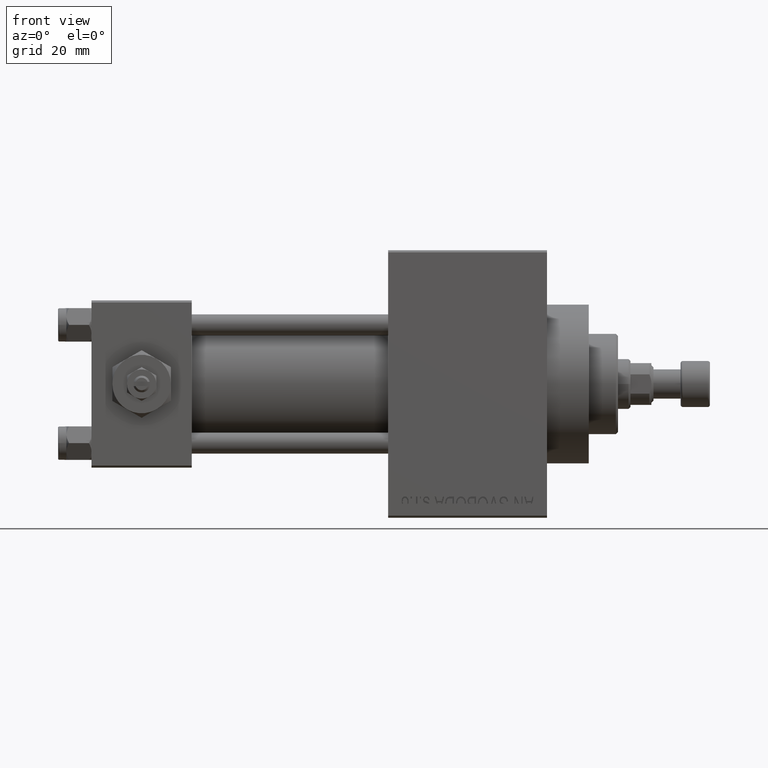
[diagram: clean part render]
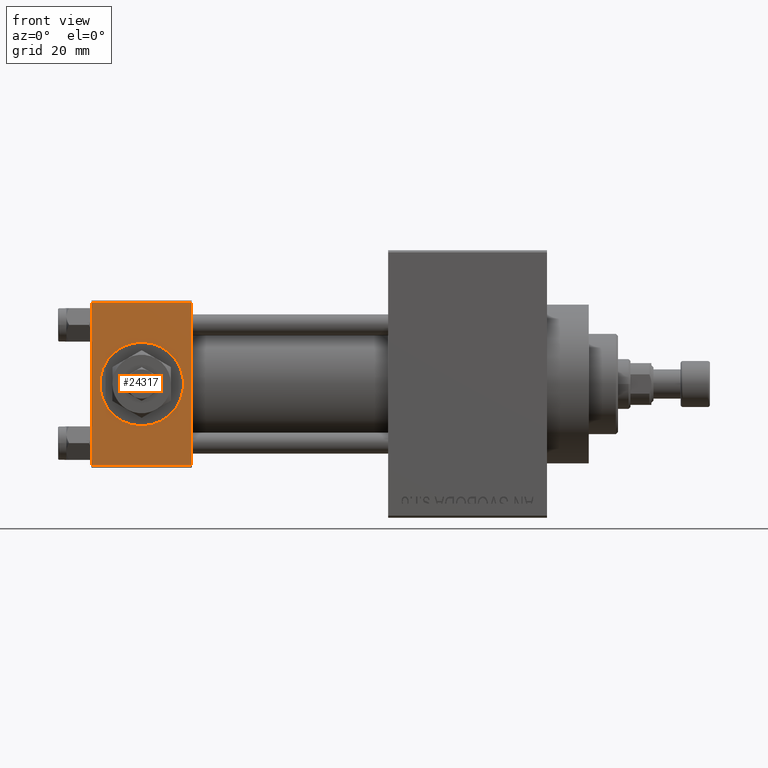
[diagram: same view with one face highlighted and labeled with its STEP entity id]
A machine part, front view. The second image highlights one B-rep face of the part: STEP entity #24317.
In plain terms, the highlighted planar face has unit normal (0, 1, 0).
Its self-contained STEP definition (entity closure, byte-faithful):
#119 = VERTEX_POINT ( 'NONE', #48372 ) ;
#276 = LINE ( 'NONE', #27024, #25086 ) ;
#725 = VERTEX_POINT ( 'NONE', #43256 ) ;
#740 = ORIENTED_EDGE ( 'NONE', *, *, #18782, .F. ) ;
#947 = ORIENTED_EDGE ( 'NONE', *, *, #17548, .F. ) ;
#3297 = DIRECTION ( 'NONE',  ( 0.000000000000000000, -1.000000000000000000, -8.673617379884036705E-17 ) ) ;
#4661 = EDGE_CURVE ( 'NONE', #119, #725, #4951, .T. ) ;
#4951 = LINE ( 'NONE', #34485, #11198 ) ;
#4972 = DIRECTION ( 'NONE',  ( 0.000000000000000000, 0.000000000000000000, -1.000000000000000000 ) ) ;
#5291 = VECTOR ( 'NONE', #7297, 1000.000000000000000 ) ;
#6007 = AXIS2_PLACEMENT_3D ( 'NONE', #20700, #24696, #4972 ) ;
#6189 = ORIENTED_EDGE ( 'NONE', *, *, #8532, .T. ) ;
#7297 = DIRECTION ( 'NONE',  ( 1.000000000000000000, 0.000000000000000000, 0.000000000000000000 ) ) ;
#7428 = ORIENTED_EDGE ( 'NONE', *, *, #4661, .F. ) ;
#8532 = EDGE_CURVE ( 'NONE', #14291, #23647, #9351, .T. ) ;
#8669 = ORIENTED_EDGE ( 'NONE', *, *, #28601, .T. ) ;
#9351 = LINE ( 'NONE', #28574, #22535 ) ;
#11198 = VECTOR ( 'NONE', #20193, 1000.000000000000000 ) ;
#14291 = VERTEX_POINT ( 'NONE', #37678 ) ;
#14557 = CARTESIAN_POINT ( 'NONE',  ( 12.00000000000000000, -20.00000000000000355, -1.734723475976807883E-15 ) ) ;
#14805 = CARTESIAN_POINT ( 'NONE',  ( 24.00000000000000000, -20.00000000000000000, -19.49999999999999645 ) ) ;
#15461 = DIRECTION ( 'NONE',  ( 0.000000000000000000, -8.673617379884036705E-17, 1.000000000000000000 ) ) ;
#17548 = EDGE_CURVE ( 'NONE', #36936, #37522, #24298, .T. ) ;
#18037 = EDGE_LOOP ( 'NONE', ( #740, #947 ) ) ;
#18782 = EDGE_CURVE ( 'NONE', #37522, #36936, #32305, .T. ) ;
#19936 = PLANE ( 'NONE',  #21202 ) ;
#20193 = DIRECTION ( 'NONE',  ( 0.000000000000000000, 8.673617379884036705E-17, -1.000000000000000000 ) ) ;
#20700 = CARTESIAN_POINT ( 'NONE',  ( 12.00000000000000000, -20.00000000000000355, -1.734723475976807883E-15 ) ) ;
#21202 = AXIS2_PLACEMENT_3D ( 'NONE', #41930, #42418, #15461 ) ;
#21806 = DIRECTION ( 'NONE',  ( 0.000000000000000000, 0.000000000000000000, -1.000000000000000000 ) ) ;
#22323 = EDGE_CURVE ( 'NONE', #23647, #725, #49045, .T. ) ;
#22535 = VECTOR ( 'NONE', #47574, 1000.000000000000000 ) ;
#22828 = CARTESIAN_POINT ( 'NONE',  ( 0.000000000000000000, -20.00000000000000000, -19.49999999999999645 ) ) ;
#23647 = VERTEX_POINT ( 'NONE', #22828 ) ;
#23686 = FACE_BOUND ( 'NONE', #18037, .T. ) ;
#24298 = CIRCLE ( 'NONE', #31459, 9.999999999999996447 ) ;
#24317 = ADVANCED_FACE ( 'NONE', ( #23686, #38909 ), #19936, .F. ) ;
#24696 = DIRECTION ( 'NONE',  ( 0.000000000000000000, -1.000000000000000000, -8.673617379884036705E-17 ) ) ;
#25008 = CARTESIAN_POINT ( 'NONE',  ( 12.00000000000000178, -20.00000000000000355, 9.999999999999994671 ) ) ;
#25086 = VECTOR ( 'NONE', #42248, 1000.000000000000000 ) ;
#27024 = CARTESIAN_POINT ( 'NONE',  ( 24.00000000000000000, -20.00000000000000355, 19.49999999999998224 ) ) ;
#28574 = CARTESIAN_POINT ( 'NONE',  ( 0.000000000000000000, -20.00000000000000355, 19.99999999999998934 ) ) ;
#28601 = EDGE_CURVE ( 'NONE', #119, #14291, #276, .T. ) ;
#30755 = CARTESIAN_POINT ( 'NONE',  ( 12.00000000000000000, -20.00000000000000355, -9.999999999999998224 ) ) ;
#31459 = AXIS2_PLACEMENT_3D ( 'NONE', #14557, #3297, #21806 ) ;
#32305 = CIRCLE ( 'NONE', #6007, 9.999999999999996447 ) ;
#34485 = CARTESIAN_POINT ( 'NONE',  ( 24.00000000000000000, -20.00000000000000355, 19.99999999999998934 ) ) ;
#36936 = VERTEX_POINT ( 'NONE', #25008 ) ;
#37522 = VERTEX_POINT ( 'NONE', #30755 ) ;
#37678 = CARTESIAN_POINT ( 'NONE',  ( 0.000000000000000000, -20.00000000000000355, 19.49999999999998224 ) ) ;
#38909 = FACE_OUTER_BOUND ( 'NONE', #40481, .T. ) ;
#40481 = EDGE_LOOP ( 'NONE', ( #6189, #48362, #7428, #8669 ) ) ;
#41930 = CARTESIAN_POINT ( 'NONE',  ( 24.00000000000000000, -20.00000000000000355, 19.99999999999998934 ) ) ;
#42248 = DIRECTION ( 'NONE',  ( -1.000000000000000000, 0.000000000000000000, 0.000000000000000000 ) ) ;
#42418 = DIRECTION ( 'NONE',  ( -0.000000000000000000, 1.000000000000000000, 8.673617379884036705E-17 ) ) ;
#43256 = CARTESIAN_POINT ( 'NONE',  ( 24.00000000000000000, -20.00000000000000000, -19.49999999999999645 ) ) ;
#47574 = DIRECTION ( 'NONE',  ( 0.000000000000000000, 8.673617379884036705E-17, -1.000000000000000000 ) ) ;
#48362 = ORIENTED_EDGE ( 'NONE', *, *, #22323, .T. ) ;
#48372 = CARTESIAN_POINT ( 'NONE',  ( 24.00000000000000000, -20.00000000000000355, 19.49999999999998224 ) ) ;
#49045 = LINE ( 'NONE', #14805, #5291 ) ;